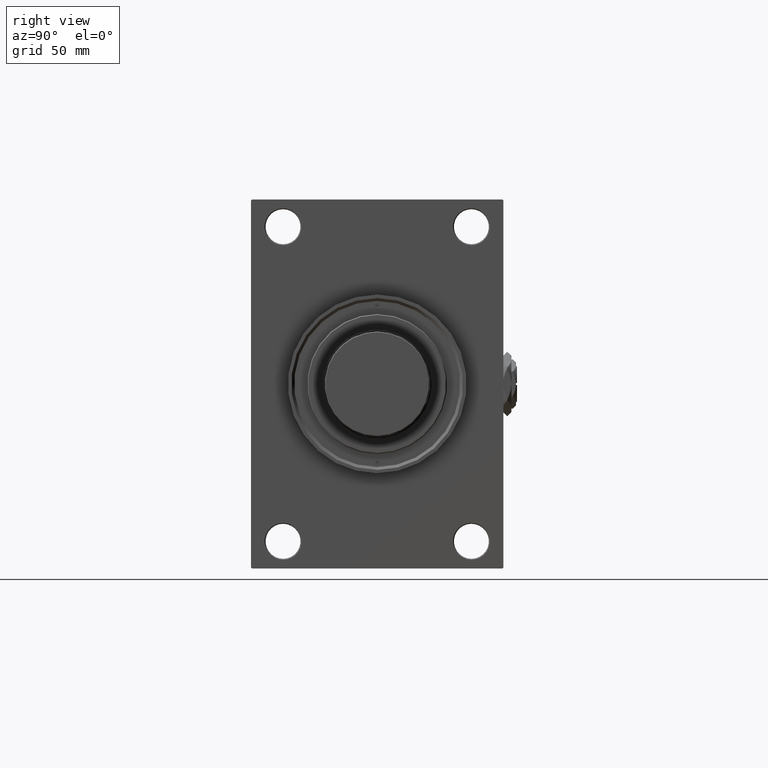
[diagram: clean part render]
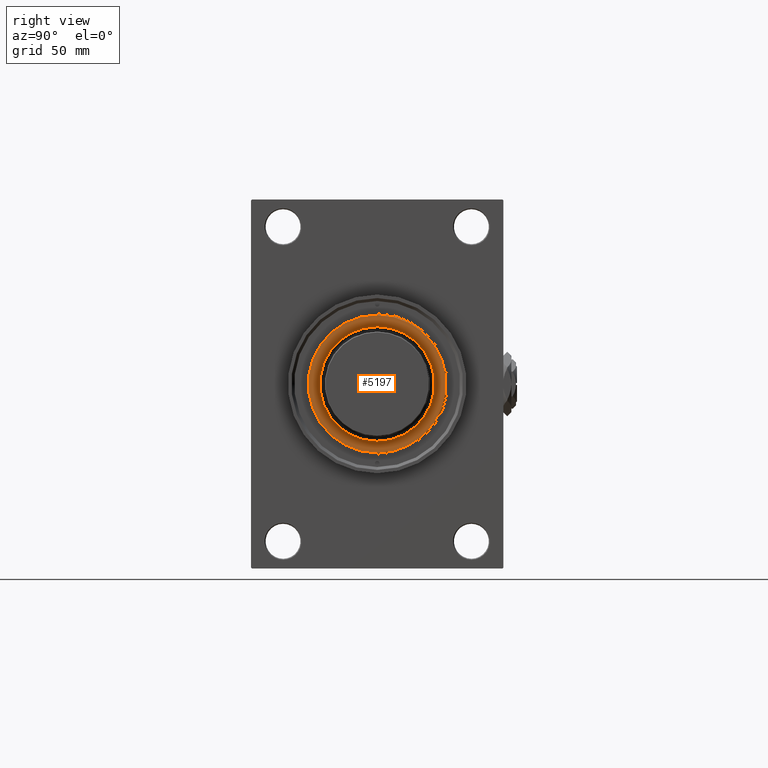
[diagram: same view with one face highlighted and labeled with its STEP entity id]
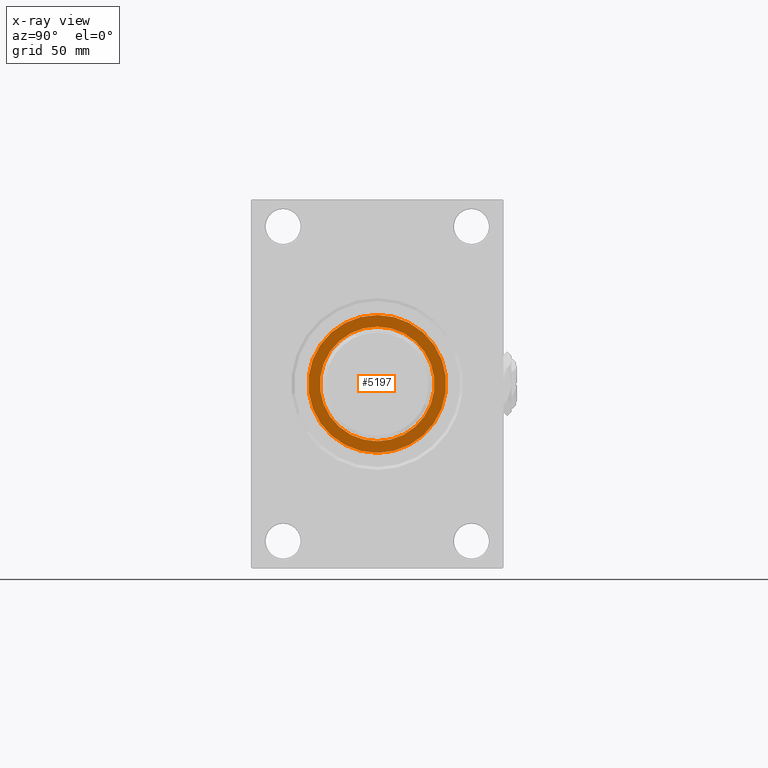
[diagram: x-ray of the same camera — body ghosted, the highlighted face saturated]
A machine part, right view. The second image highlights one B-rep face of the part: STEP entity #5197.
The next image is the same camera in x-ray: the body ghosted, the highlighted face saturated — about 0% of this face is hidden behind the body in this view.
In plain terms, the highlighted planar face has unit normal (1, -0, -0).
Its self-contained STEP definition (entity closure, byte-faithful):
#898 = ORIENTED_EDGE ( 'NONE', *, *, #18057, .F. ) ;
#4940 = CIRCLE ( 'NONE', #13927, 35.50000000000001421 ) ;
#5197 = ADVANCED_FACE ( 'NONE', ( #12740, #37020 ), #24518, .T. ) ;
#6291 = AXIS2_PLACEMENT_3D ( 'NONE', #44677, #40587, #28105 ) ;
#7222 = VERTEX_POINT ( 'NONE', #37343 ) ;
#7730 = DIRECTION ( 'NONE',  ( 0.000000000000000000, 0.000000000000000000, 1.000000000000000000 ) ) ;
#9509 = EDGE_LOOP ( 'NONE', ( #28000, #898 ) ) ;
#11233 = CIRCLE ( 'NONE', #38992, 29.50000000000000355 ) ;
#11712 = EDGE_CURVE ( 'NONE', #50346, #23558, #11233, .T. ) ;
#12740 = FACE_BOUND ( 'NONE', #9509, .T. ) ;
#13927 = AXIS2_PLACEMENT_3D ( 'NONE', #23916, #39488, #43816 ) ;
#15930 = CARTESIAN_POINT ( 'NONE',  ( 29.50000000000000355, 0.000000000000000000, 53.26000000000000512 ) ) ;
#18057 = EDGE_CURVE ( 'NONE', #23558, #50346, #26041, .T. ) ;
#20584 = CARTESIAN_POINT ( 'NONE',  ( 0.000000000000000000, 0.000000000000000000, 53.26000000000000512 ) ) ;
#22976 = EDGE_CURVE ( 'NONE', #34556, #7222, #48245, .T. ) ;
#23399 = EDGE_LOOP ( 'NONE', ( #45260, #47579 ) ) ;
#23558 = VERTEX_POINT ( 'NONE', #50291 ) ;
#23916 = CARTESIAN_POINT ( 'NONE',  ( 0.000000000000000000, 0.000000000000000000, 53.26000000000000512 ) ) ;
#24518 = PLANE ( 'NONE',  #6291 ) ;
#26041 = CIRCLE ( 'NONE', #46439, 29.50000000000000355 ) ;
#28000 = ORIENTED_EDGE ( 'NONE', *, *, #11712, .F. ) ;
#28105 = DIRECTION ( 'NONE',  ( 1.000000000000000000, 0.000000000000000000, -0.000000000000000000 ) ) ;
#28161 = DIRECTION ( 'NONE',  ( 0.000000000000000000, 0.000000000000000000, 1.000000000000000000 ) ) ;
#31114 = AXIS2_PLACEMENT_3D ( 'NONE', #42746, #7730, #43241 ) ;
#34556 = VERTEX_POINT ( 'NONE', #45071 ) ;
#36170 = DIRECTION ( 'NONE',  ( 1.000000000000000000, 0.000000000000000000, 0.000000000000000000 ) ) ;
#37020 = FACE_OUTER_BOUND ( 'NONE', #23399, .T. ) ;
#37343 = CARTESIAN_POINT ( 'NONE',  ( -35.50000000000001421, 0.000000000000000000, 53.26000000000000512 ) ) ;
#38992 = AXIS2_PLACEMENT_3D ( 'NONE', #20584, #47896, #36170 ) ;
#39488 = DIRECTION ( 'NONE',  ( 0.000000000000000000, 0.000000000000000000, 1.000000000000000000 ) ) ;
#40587 = DIRECTION ( 'NONE',  ( 0.000000000000000000, 0.000000000000000000, 1.000000000000000000 ) ) ;
#42746 = CARTESIAN_POINT ( 'NONE',  ( 0.000000000000000000, 0.000000000000000000, 53.26000000000000512 ) ) ;
#43241 = DIRECTION ( 'NONE',  ( 1.000000000000000000, 0.000000000000000000, 0.000000000000000000 ) ) ;
#43502 = CARTESIAN_POINT ( 'NONE',  ( 0.000000000000000000, 0.000000000000000000, 53.26000000000000512 ) ) ;
#43816 = DIRECTION ( 'NONE',  ( 1.000000000000000000, 0.000000000000000000, 0.000000000000000000 ) ) ;
#44677 = CARTESIAN_POINT ( 'NONE',  ( 0.000000000000000000, 0.000000000000000000, 53.26000000000000512 ) ) ;
#44945 = EDGE_CURVE ( 'NONE', #7222, #34556, #4940, .T. ) ;
#45071 = CARTESIAN_POINT ( 'NONE',  ( 35.50000000000001421, 4.378112306951788646E-15, 53.26000000000000512 ) ) ;
#45260 = ORIENTED_EDGE ( 'NONE', *, *, #44945, .T. ) ;
#46439 = AXIS2_PLACEMENT_3D ( 'NONE', #43502, #28161, #47077 ) ;
#47077 = DIRECTION ( 'NONE',  ( 1.000000000000000000, 0.000000000000000000, 0.000000000000000000 ) ) ;
#47579 = ORIENTED_EDGE ( 'NONE', *, *, #22976, .T. ) ;
#47896 = DIRECTION ( 'NONE',  ( 0.000000000000000000, 0.000000000000000000, 1.000000000000000000 ) ) ;
#48245 = CIRCLE ( 'NONE', #31114, 35.50000000000001421 ) ;
#50291 = CARTESIAN_POINT ( 'NONE',  ( -29.50000000000000355, 3.612708057484692393E-15, 53.26000000000000512 ) ) ;
#50346 = VERTEX_POINT ( 'NONE', #15930 ) ;